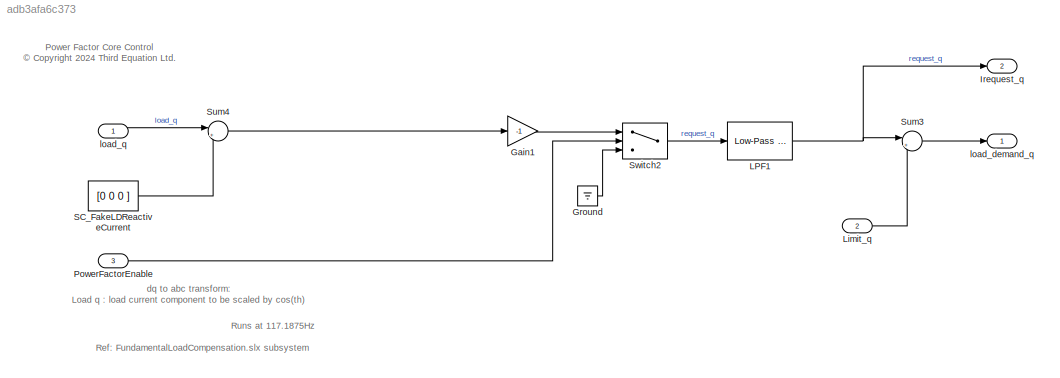
MODEL slx_adb3afa6c373
KIND model
BLOCK [Gain] Gain1
  Gain = -1
BLOCK [Ground] Ground
BLOCK [Outport] Irequest_q
  OutDataTypeStr = single
  Port = 2
  PortDimensions = 3
BLOCK [Reference] LPF1  REF=eeGeneralControl/Low-Pass Filter
(Discrete or Continuous)
  SourceBlock = eeGeneralControl/Low-Pass Filter\n(Discrete or Continuous)
  SourceType = Low-Pass Filter (Discrete or Continuous)
BLOCK [Inport] Limit_q
  OutDataTypeStr = single
  Port = 2
  PortDimensions = 3
BLOCK [Inport] PowerFactorEnable
  OutDataTypeStr = boolean
  Port = 3
  PortDimensions = 1
BLOCK [Constant] SC_FakeLDReactiveCurrent
  OutDataTypeStr = single
  Value = [0 0 0 ]
BLOCK [Sum] Sum3
  Inputs = |+-
BLOCK [Sum] Sum4
  Inputs = |++
BLOCK [Switch] Switch2
  Criteria = u2 > Threshold
  InputSameDT = off
  SaturateOnIntegerOverflow = off
BLOCK [Outport] load_demand_q
  OutDataTypeStr = single
  PortDimensions = 3
BLOCK [Inport] load_q
  OutDataTypeStr = single
  PortDimensions = 3
ANNOTATION (root): Power Factor Core Control <copyright redacted>
ANNOTATION (root): Runs at 117.1875Hz
ANNOTATION (root): Ref: FundamentalLoadCompensation.slx subsystem
ANNOTATION (root): dq to abc transform: Load q : load current component to be scaled by cos(th)
LINE Gain1:1 -> Switch2:1
LINE Ground:1 -> Switch2:3
NET LPF1:1 -> Irequest_q:1, Sum3:1
LINE Limit_q:1 -> Sum3:2
LINE PowerFactorEnable:1 -> Switch2:2
LINE SC_FakeLDReactiveCurrent:1 -> Sum4:2
LINE Sum3:1 -> load_demand_q:1
LINE Sum4:1 -> Gain1:1
LINE Switch2:1 -> LPF1:1
LINE load_q:1 -> Sum4:1
note: NET lines group one-source signal fan-out (src -> all destinations, sorted); 1:1 wires keep LINE
